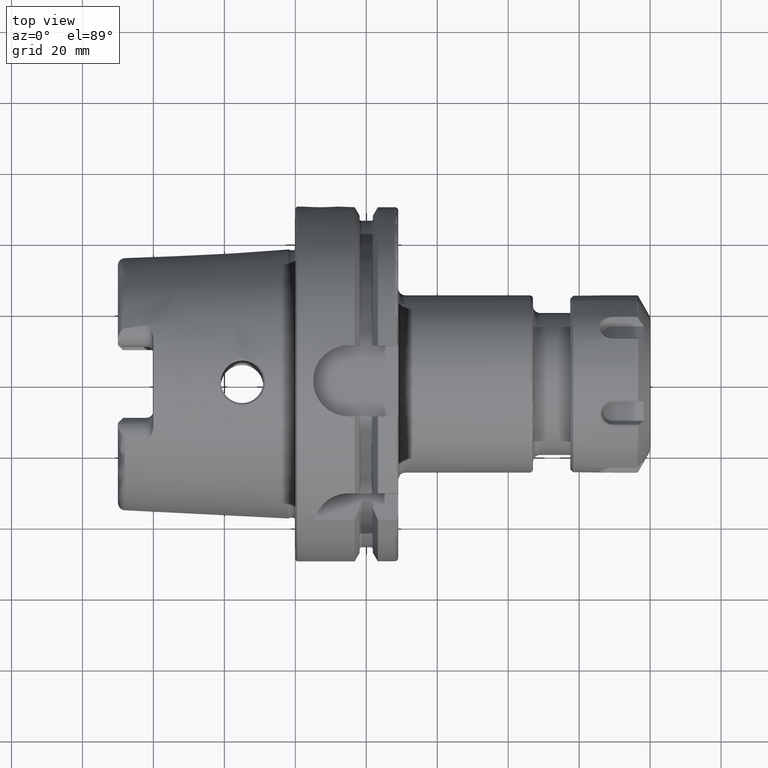
[diagram: clean part render]
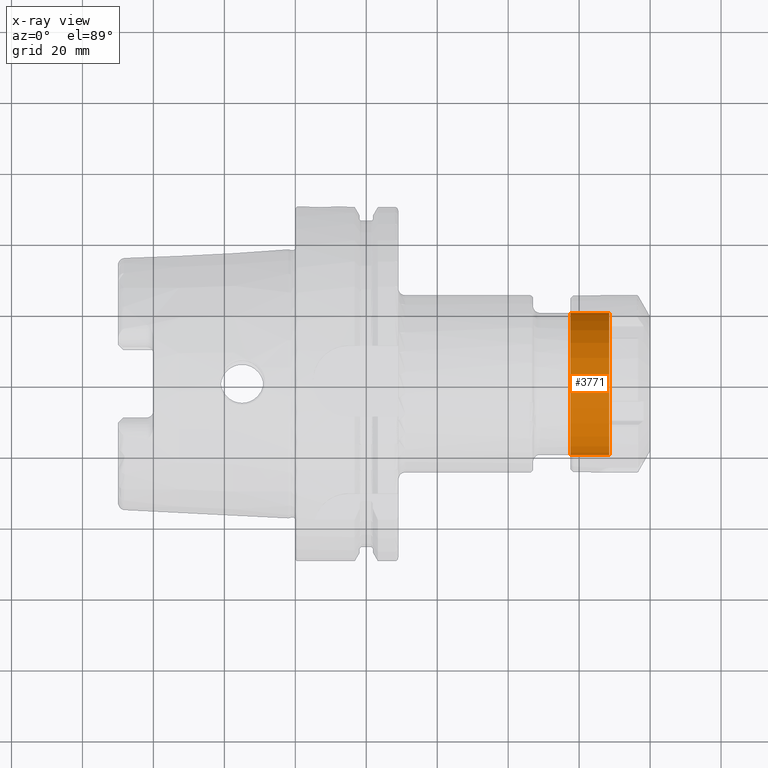
[diagram: x-ray — body ghosted, one internal face saturated and labeled with its STEP entity id]
A machine part, top view, then the same camera in x-ray: the body is ghosted and one INTERNAL B-rep face — a face not visible from any outside direction — is saturated and labeled: STEP entity #3771.
In plain terms, the highlighted cylindrical surface (bore or boss wall) has radius 20 mm, axis along (-1, 0, 0).
Its self-contained STEP definition (entity closure, byte-faithful):
#547=FACE_OUTER_BOUND('',#772,.T.);
#772=EDGE_LOOP('',(#3502,#3503,#3504,#3505,#3506,#3507));
#965=LINE('',#8575,#1156);
#1156=VECTOR('',#5374,20.);
#1395=CIRCLE('',#4280,20.);
#1396=CIRCLE('',#4281,20.);
#1397=CIRCLE('',#4282,20.);
#1398=CIRCLE('',#4283,20.);
#1781=VERTEX_POINT('',#8570);
#1782=VERTEX_POINT('',#8571);
#1783=VERTEX_POINT('',#8574);
#1784=VERTEX_POINT('',#8576);
#2356=EDGE_CURVE('',#1781,#1782,#1395,.T.);
#2357=EDGE_CURVE('',#1782,#1781,#1396,.T.);
#2358=EDGE_CURVE('',#1782,#1783,#965,.T.);
#2359=EDGE_CURVE('',#1783,#1784,#1397,.T.);
#2360=EDGE_CURVE('',#1784,#1783,#1398,.T.);
#3502=ORIENTED_EDGE('',*,*,#2356,.F.);
#3503=ORIENTED_EDGE('',*,*,#2357,.F.);
#3504=ORIENTED_EDGE('',*,*,#2358,.T.);
#3505=ORIENTED_EDGE('',*,*,#2359,.T.);
#3506=ORIENTED_EDGE('',*,*,#2360,.T.);
#3507=ORIENTED_EDGE('',*,*,#2358,.F.);
#3566=CYLINDRICAL_SURFACE('',#4279,20.);
#3771=ADVANCED_FACE('',(#547),#3566,.T.);
#4279=AXIS2_PLACEMENT_3D('',#8569,#5368,#5369);
#4280=AXIS2_PLACEMENT_3D('',#8572,#5370,#5371);
#4281=AXIS2_PLACEMENT_3D('',#8573,#5372,#5373);
#4282=AXIS2_PLACEMENT_3D('',#8577,#5375,#5376);
#4283=AXIS2_PLACEMENT_3D('',#8578,#5377,#5378);
#5368=DIRECTION('center_axis',(-1.,0.,0.));
#5369=DIRECTION('ref_axis',(0.,-1.,0.));
#5370=DIRECTION('center_axis',(-1.,0.,0.));
#5371=DIRECTION('ref_axis',(0.,1.,0.));
#5372=DIRECTION('center_axis',(-1.,0.,0.));
#5373=DIRECTION('ref_axis',(0.,1.,0.));
#5374=DIRECTION('',(1.,0.,0.));
#5375=DIRECTION('center_axis',(-1.,0.,0.));
#5376=DIRECTION('ref_axis',(0.,1.,0.));
#5377=DIRECTION('center_axis',(-1.,0.,0.));
#5378=DIRECTION('ref_axis',(0.,1.,0.));
#8569=CARTESIAN_POINT('Origin',(-11.25,0.,0.));
#8570=CARTESIAN_POINT('',(-11.25,-20.,0.));
#8571=CARTESIAN_POINT('',(-11.25,20.,-2.44929359829471E-15));
#8572=CARTESIAN_POINT('Origin',(-11.25,0.,0.));
#8573=CARTESIAN_POINT('Origin',(-11.25,0.,0.));
#8574=CARTESIAN_POINT('',(-0.249999999999999,20.,-2.44929359829471E-15));
#8575=CARTESIAN_POINT('',(-11.25,20.,-2.44929359829471E-15));
#8576=CARTESIAN_POINT('',(-0.25,-20.,0.));
#8577=CARTESIAN_POINT('Origin',(-0.25,0.,0.));
#8578=CARTESIAN_POINT('Origin',(-0.25,0.,0.));